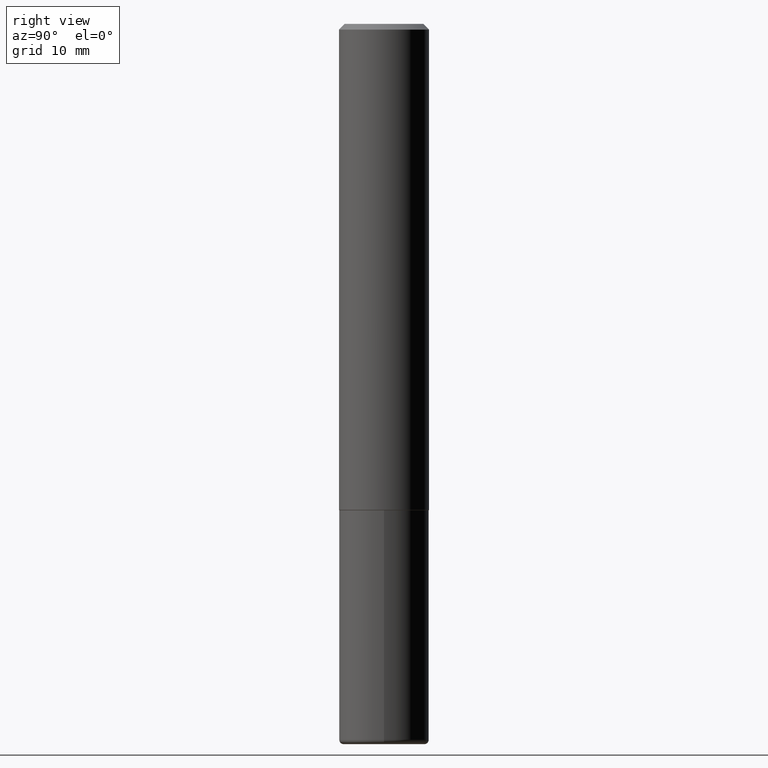
[diagram: clean part render]
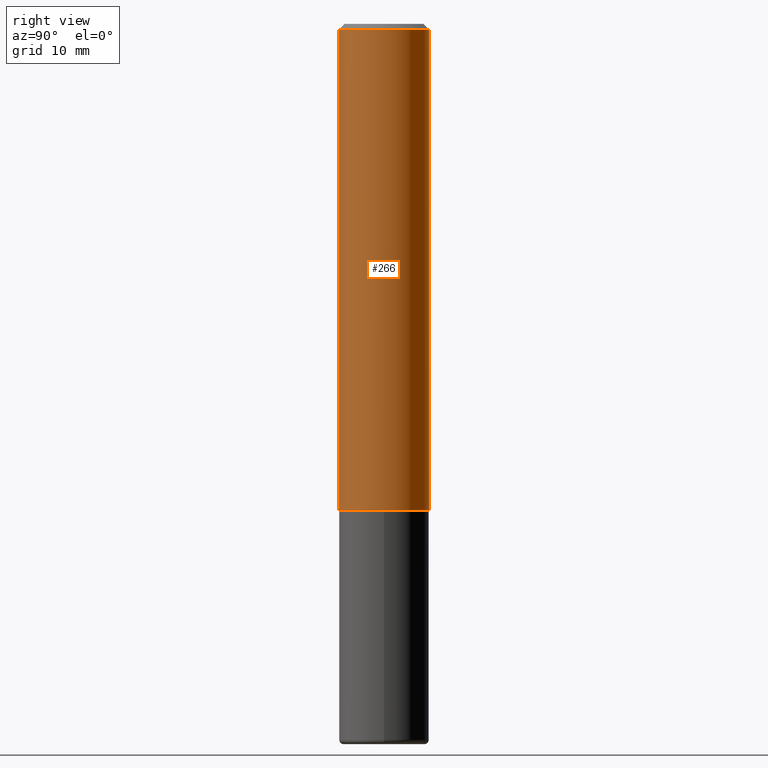
[diagram: same view with one face highlighted and labeled with its STEP entity id]
A machine part, right view. The second image highlights one B-rep face of the part: STEP entity #266.
In plain terms, the highlighted cylindrical surface (partial cylindrical patch) has radius 3.9688 mm, axis along (-0, 0, 1).
Its self-contained STEP definition (entity closure, byte-faithful):
#32 = ORIENTED_EDGE ( 'NONE', *, *, #298, .F. ) ;
#53 = VECTOR ( 'NONE', #380, 39.37007874015748143 ) ;
#58 = EDGE_LOOP ( 'NONE', ( #336, #216, #32, #288 ) ) ;
#60 = AXIS2_PLACEMENT_3D ( 'NONE', #260, #393, #262 ) ;
#61 = VERTEX_POINT ( 'NONE', #270 ) ;
#64 = VERTEX_POINT ( 'NONE', #84 ) ;
#84 = CARTESIAN_POINT ( 'NONE',  ( 1.110223024625178234E-15, 0.1562499999999943101, -1.687000000000000499 ) ) ;
#89 = CARTESIAN_POINT ( 'NONE',  ( -1.071952812151801215E-15, -0.1562500000000000833, -0.01999999999999948694 ) ) ;
#100 = CARTESIAN_POINT ( 'NONE',  ( 0.000000000000000000, 0.000000000000000000, 0.000000000000000000 ) ) ;
#103 = FACE_OUTER_BOUND ( 'NONE', #58, .T. ) ;
#107 = DIRECTION ( 'NONE',  ( -6.982962677686265922E-15, -1.000000000000000000, 3.492087922831532098E-15 ) ) ;
#122 = LINE ( 'NONE', #310, #53 ) ;
#128 = EDGE_CURVE ( 'NONE', #64, #245, #383, .T. ) ;
#140 = CARTESIAN_POINT ( 'NONE',  ( 4.890090461699924977E-31, -6.984175845663074797E-17, -0.02000000000000003511 ) ) ;
#143 = EDGE_CURVE ( 'NONE', #61, #184, #122, .T. ) ;
#159 = AXIS2_PLACEMENT_3D ( 'NONE', #100, #322, #107 ) ;
#167 = CIRCLE ( 'NONE', #402, 0.1562500000000000000 ) ;
#184 = VERTEX_POINT ( 'NONE', #89 ) ;
#191 = VECTOR ( 'NONE', #217, 39.37007874015748143 ) ;
#193 = EDGE_CURVE ( 'NONE', #61, #64, #205, .T. ) ;
#194 = DIRECTION ( 'NONE',  ( -6.982962677686265133E-15, -1.000000000000000000, 3.496765431890256920E-15 ) ) ;
#205 = CIRCLE ( 'NONE', #60, 0.1562500000000002220 ) ;
#216 = ORIENTED_EDGE ( 'NONE', *, *, #128, .T. ) ;
#217 = DIRECTION ( 'NONE',  ( -2.445045230849958565E-29, 3.492087922831532098E-15, 1.000000000000000000 ) ) ;
#245 = VERTEX_POINT ( 'NONE', #267 ) ;
#260 = CARTESIAN_POINT ( 'NONE',  ( 4.124791304443880664E-29, -5.891152325816794336E-15, -1.687000000000000055 ) ) ;
#262 = DIRECTION ( 'NONE',  ( -6.982962677686265922E-15, -1.000000000000000000, 3.496765431890251792E-15 ) ) ;
#266 = ADVANCED_FACE ( 'NONE', ( #103 ), #391, .T. ) ;
#267 = CARTESIAN_POINT ( 'NONE',  ( 1.091087918388479568E-15, 0.1562499999999999445, -0.02000000000000057981 ) ) ;
#270 = CARTESIAN_POINT ( 'NONE',  ( -1.091087918388439336E-15, -0.1562500000000061062, -1.686999999999999611 ) ) ;
#288 = ORIENTED_EDGE ( 'NONE', *, *, #143, .F. ) ;
#298 = EDGE_CURVE ( 'NONE', #184, #245, #167, .T. ) ;
#310 = CARTESIAN_POINT ( 'NONE',  ( -1.091087918388479765E-15, -0.1562500000000001110, 5.456387379424272725E-16 ) ) ;
#322 = DIRECTION ( 'NONE',  ( -2.445045230849958565E-29, 3.492087922831531704E-15, 1.000000000000000000 ) ) ;
#336 = ORIENTED_EDGE ( 'NONE', *, *, #193, .T. ) ;
#350 = CARTESIAN_POINT ( 'NONE',  ( 1.110223024625157132E-15, 0.1562500000000001110, -5.456387379424272725E-16 ) ) ;
#360 = DIRECTION ( 'NONE',  ( -2.445045230849958565E-29, 3.492087922831531704E-15, 1.000000000000000000 ) ) ;
#380 = DIRECTION ( 'NONE',  ( -2.445045230849958565E-29, 3.492087922831532098E-15, 1.000000000000000000 ) ) ;
#383 = LINE ( 'NONE', #350, #191 ) ;
#391 = CYLINDRICAL_SURFACE ( 'NONE', #159, 0.1562500000000001110 ) ;
#393 = DIRECTION ( 'NONE',  ( -2.445045230849958565E-29, 3.492087922831531704E-15, 1.000000000000000000 ) ) ;
#402 = AXIS2_PLACEMENT_3D ( 'NONE', #140, #360, #194 ) ;